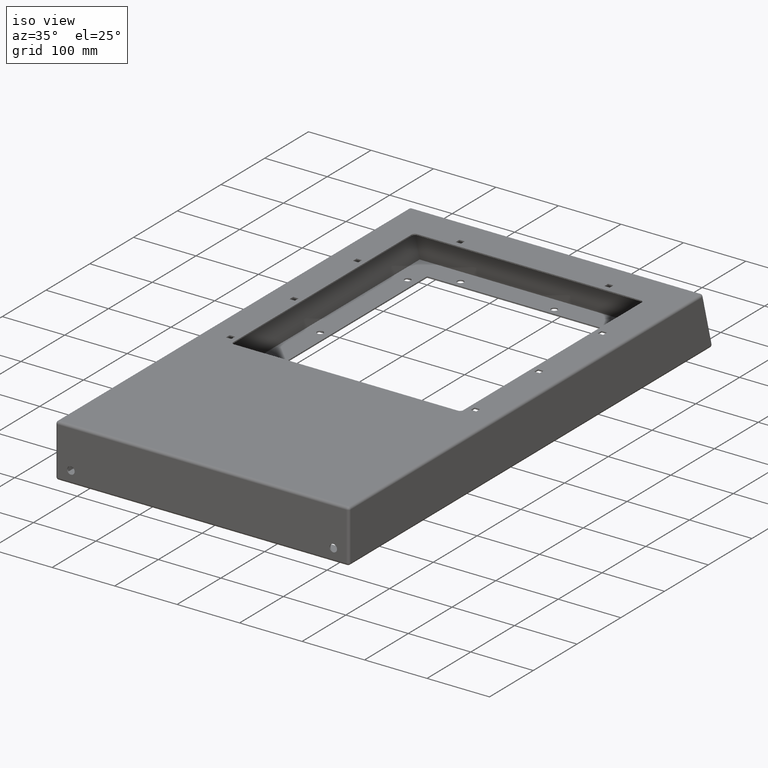
[diagram: clean part render]
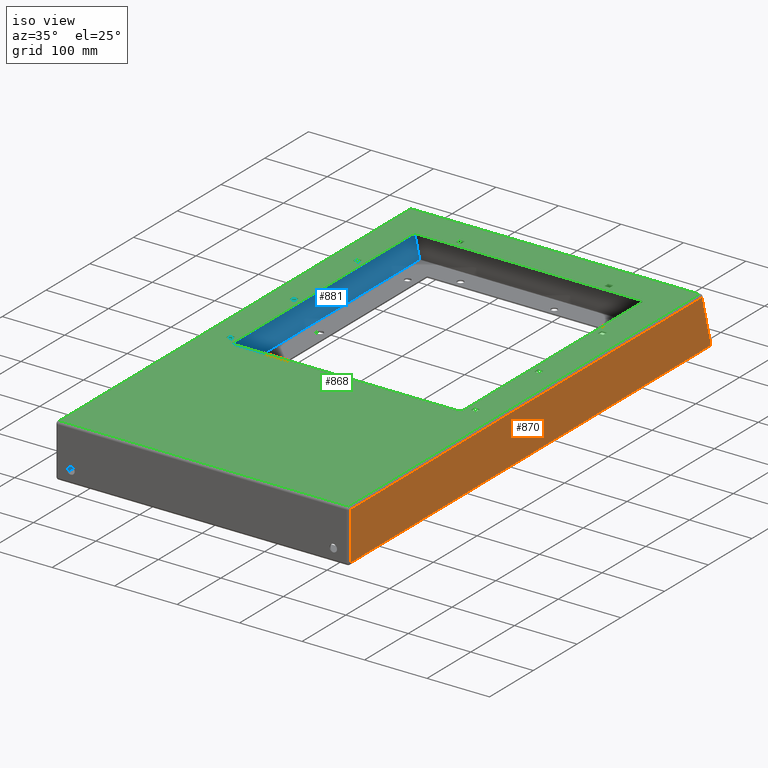
[diagram: same view with three faces highlighted in distinct colors, each labeled with its STEP entity id]
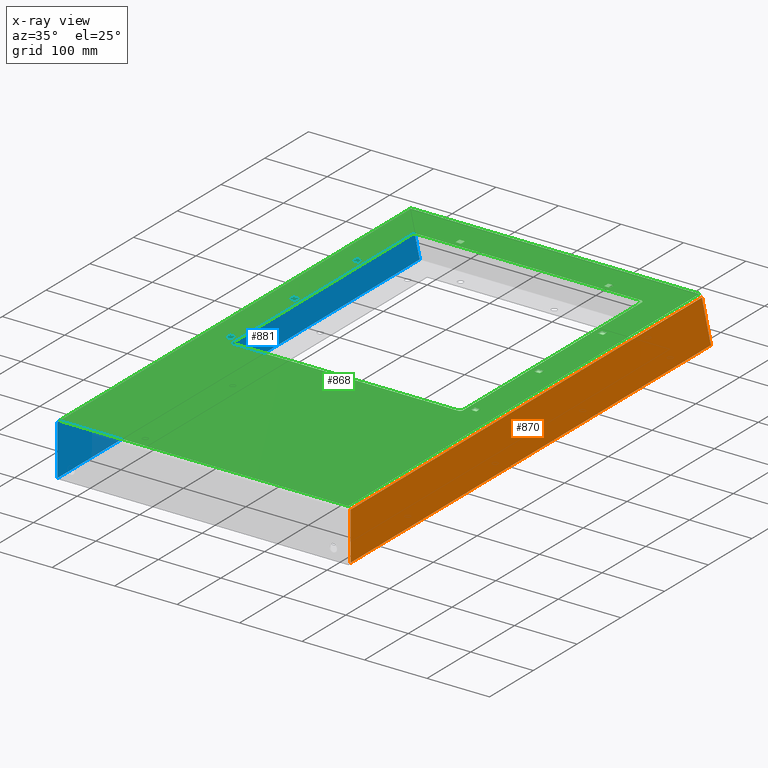
[diagram: x-ray of the same camera — body ghosted, the three highlighted faces saturated]
A machine part, iso view with three faces highlighted in distinct colors.
The next image is the same camera in x-ray (body ghosted, the three faces saturated) — at least one of them is partly hidden behind the body in this view.
Their STEP definitions:

[orange] entity #870 — the highlighted planar face has unit normal (1, 0, -0).
#302 = CARTESIAN_POINT ( 'NONE',  ( 235.0000000000000000, 3.999999999999998200, 4.000000000000000000 ) ) ;
#315 = CARTESIAN_POINT ( 'NONE',  ( 235.0000000000000000, 3.999999999999989800, 81.00000000000000000 ) ) ;
#321 = CARTESIAN_POINT ( 'NONE',  ( 235.0000000000000000, 827.5627798652806200, 3.999999999999988900 ) ) ;
#322 = CARTESIAN_POINT ( 'NONE',  ( 235.0000000000000000, 806.9306920480843200, 81.00000000000008500 ) ) ;
#731 = PLANE ( 'NONE',  #1813 ) ;
#733 = CARTESIAN_POINT ( 'NONE',  ( 235.0000000000000000, 0.0000000000000000000, 0.0000000000000000000 ) ) ;
#739 = DIRECTION ( 'NONE',  ( 1.000000000000000000, 0.0000000000000000000, -0.0000000000000000000 ) ) ;
#740 = DIRECTION ( 'NONE',  ( -0.0000000000000000000, 0.0000000000000000000, -1.000000000000000000 ) ) ;
#799 = EDGE_LOOP ( 'NONE', ( #1352, #1353, #1354, #1355 ) ) ;
#870 = ADVANCED_FACE ( 'NONE', ( #2137 ), #731, .T. ) ;
#1050 = EDGE_CURVE ( 'NONE', #1510, #1497, #2587, .T. ) ;
#1051 = EDGE_CURVE ( 'NONE', #1497, #1516, #2588, .T. ) ;
#1052 = EDGE_CURVE ( 'NONE', #1516, #1517, #2591, .T. ) ;
#1053 = EDGE_CURVE ( 'NONE', #1517, #1510, #2593, .T. ) ;
#1352 = ORIENTED_EDGE ( 'NONE', *, *, #1050, .T. ) ;
#1353 = ORIENTED_EDGE ( 'NONE', *, *, #1051, .T. ) ;
#1354 = ORIENTED_EDGE ( 'NONE', *, *, #1052, .T. ) ;
#1355 = ORIENTED_EDGE ( 'NONE', *, *, #1053, .T. ) ;
#1497 = VERTEX_POINT ( 'NONE', #302 ) ;
#1510 = VERTEX_POINT ( 'NONE', #315 ) ;
#1516 = VERTEX_POINT ( 'NONE', #321 ) ;
#1517 = VERTEX_POINT ( 'NONE', #322 ) ;
#1813 = AXIS2_PLACEMENT_3D ( 'NONE', #733, #739, #740 ) ;
#2137 = FACE_OUTER_BOUND ( 'NONE', #799, .T. ) ;
#2587 = LINE ( 'NONE', #2832, #2590 ) ;
#2588 = LINE ( 'NONE', #2831, #2592 ) ;
#2590 = VECTOR ( 'NONE', #2827, 1000.000000000000000 ) ;
#2591 = LINE ( 'NONE', #2837, #2594 ) ;
#2592 = VECTOR ( 'NONE', #2836, 1000.000000000000000 ) ;
#2593 = LINE ( 'NONE', #2839, #2596 ) ;
#2594 = VECTOR ( 'NONE', #2838, 999.9999999999998900 ) ;
#2596 = VECTOR ( 'NONE', #2840, 1000.000000000000000 ) ;
#2827 = DIRECTION ( 'NONE',  ( -0.0000000000000000000, 1.224646799147353500E-016, -1.000000000000000000 ) ) ;
#2831 = CARTESIAN_POINT ( 'NONE',  ( 235.0000000000000000, 832.7756813566452400, 4.000000000000000000 ) ) ;
#2832 = CARTESIAN_POINT ( 'NONE',  ( 235.0000000000000000, 3.999999999999999100, 4.898587196589412800E-016 ) ) ;
#2836 = DIRECTION ( 'NONE',  ( -0.0000000000000000000, 1.000000000000000000, 0.0000000000000000000 ) ) ;
#2837 = CARTESIAN_POINT ( 'NONE',  ( 235.0000000000000000, 806.1362966948438500, 83.96472381959000600 ) ) ;
#2838 = DIRECTION ( 'NONE',  ( 0.0000000000000000000, -0.2588190451025181900, 0.9659258262890690900 ) ) ;
#2839 = CARTESIAN_POINT ( 'NONE',  ( 235.0000000000000000, -9.998304079928369100E-015, 81.00000000000000000 ) ) ;
#2840 = DIRECTION ( 'NONE',  ( 0.0000000000000000000, -1.000000000000000000, -1.027984282060330300E-016 ) ) ;

[blue] entity #881 — the highlighted planar face has unit normal (1, 0, -0).
#38 = CARTESIAN_POINT ( 'NONE',  ( -232.9999999999999700, 810.0000000000000000, 83.00000000000008500 ) ) ;
#39 = DIRECTION ( 'NONE',  ( 0.0000000000000000000, -1.000000000000000000, -1.027984282060330300E-016 ) ) ;
#50 = CARTESIAN_POINT ( 'NONE',  ( -232.9999999999999700, 1.999999999999999600, 2.449293598294706400E-016 ) ) ;
#51 = DIRECTION ( 'NONE',  ( 0.0000000000000000000, 1.224646799147353500E-016, -1.000000000000000000 ) ) ;
#216 = CARTESIAN_POINT ( 'NONE',  ( -232.9999999999999700, 1.999999999999989600, 83.00000000000000000 ) ) ;
#241 = EDGE_LOOP ( 'NONE', ( #1600, #1601, #1602, #1603 ) ) ;
#881 = ADVANCED_FACE ( 'NONE', ( #2173 ), #2245, .T. ) ;
#902 = VERTEX_POINT ( 'NONE', #2265 ) ;
#908 = VERTEX_POINT ( 'NONE', #2271 ) ;
#910 = VERTEX_POINT ( 'NONE', #2273 ) ;
#1094 = EDGE_CURVE ( 'NONE', #902, #910, #2659, .T. ) ;
#1098 = EDGE_CURVE ( 'NONE', #910, #908, #2667, .T. ) ;
#1137 = EDGE_CURVE ( 'NONE', #908, #1306, #2742, .T. ) ;
#1142 = EDGE_CURVE ( 'NONE', #1306, #902, #2749, .T. ) ;
#1306 = VERTEX_POINT ( 'NONE', #216 ) ;
#1600 = ORIENTED_EDGE ( 'NONE', *, *, #1094, .T. ) ;
#1601 = ORIENTED_EDGE ( 'NONE', *, *, #1098, .T. ) ;
#1602 = ORIENTED_EDGE ( 'NONE', *, *, #1137, .T. ) ;
#1603 = ORIENTED_EDGE ( 'NONE', *, *, #1142, .T. ) ;
#1825 = AXIS2_PLACEMENT_3D ( 'NONE', #2246, #2247, #2248 ) ;
#2173 = FACE_OUTER_BOUND ( 'NONE', #241, .T. ) ;
#2245 = PLANE ( 'NONE',  #1825 ) ;
#2246 = CARTESIAN_POINT ( 'NONE',  ( -232.9999999999999700, 0.0000000000000000000, 0.0000000000000000000 ) ) ;
#2247 = DIRECTION ( 'NONE',  ( 1.000000000000000000, 0.0000000000000000000, -0.0000000000000000000 ) ) ;
#2248 = DIRECTION ( 'NONE',  ( -0.0000000000000000000, 0.0000000000000000000, -1.000000000000000000 ) ) ;
#2265 = CARTESIAN_POINT ( 'NONE',  ( -232.9999999999999700, 1.999999999999999100, 2.000000000000000000 ) ) ;
#2271 = CARTESIAN_POINT ( 'NONE',  ( -232.9999999999999700, 808.4653460240421100, 83.00000000000008500 ) ) ;
#2273 = CARTESIAN_POINT ( 'NONE',  ( -232.9999999999999700, 830.1692306109628100, 2.000000000000000000 ) ) ;
#2659 = LINE ( 'NONE', #2938, #2662 ) ;
#2662 = VECTOR ( 'NONE', #2940, 1000.000000000000000 ) ;
#2667 = LINE ( 'NONE', #2945, #2670 ) ;
#2670 = VECTOR ( 'NONE', #2946, 999.9999999999998900 ) ;
#2742 = LINE ( 'NONE', #38, #2744 ) ;
#2744 = VECTOR ( 'NONE', #39, 1000.000000000000000 ) ;
#2749 = LINE ( 'NONE', #50, #2751 ) ;
#2751 = VECTOR ( 'NONE', #51, 1000.000000000000000 ) ;
#2938 = CARTESIAN_POINT ( 'NONE',  ( -232.9999999999999700, 0.0000000000000000000, 2.000000000000000000 ) ) ;
#2940 = DIRECTION ( 'NONE',  ( -0.0000000000000000000, 1.000000000000000000, 0.0000000000000000000 ) ) ;
#2945 = CARTESIAN_POINT ( 'NONE',  ( -232.9999999999999700, 830.8438297040671600, -0.5176380902050363700 ) ) ;
#2946 = DIRECTION ( 'NONE',  ( 0.0000000000000000000, -0.2588190451025181900, 0.9659258262890690900 ) ) ;

[green] entity #868 — the highlighted planar face has unit normal (0, 0, -1).
#259 = CARTESIAN_POINT ( 'NONE',  ( 200.2500000000000000, 639.2500000000000000, 85.00000000000007100 ) ) ;
#267 = CARTESIAN_POINT ( 'NONE',  ( -230.9999999999999700, 806.9306920480842100, 85.00000000000008500 ) ) ;
#268 = CARTESIAN_POINT ( 'NONE',  ( -230.9999999999999700, 3.999999999999989800, 85.00000000000000000 ) ) ;
#271 = CARTESIAN_POINT ( 'NONE',  ( 200.2500000000000000, 630.7499999999998900, 85.00000000000000000 ) ) ;
#272 = CARTESIAN_POINT ( 'NONE',  ( -191.7500000000000000, 630.7499999999998900, 85.00000000000000000 ) ) ;
#273 = CARTESIAN_POINT ( 'NONE',  ( 230.9999999999999700, 3.999999999999989800, 85.00000000000000000 ) ) ;
#274 = CARTESIAN_POINT ( 'NONE',  ( 230.9999999999999700, 806.9306920480842100, 85.00000000000008500 ) ) ;
#275 = CARTESIAN_POINT ( 'NONE',  ( 200.2500000000000000, 485.7500000000000000, 85.00000000000000000 ) ) ;
#276 = CARTESIAN_POINT ( 'NONE',  ( -200.2500000000000000, 630.7499999999998900, 85.00000000000000000 ) ) ;
#277 = CARTESIAN_POINT ( 'NONE',  ( -114.7500000000001400, 764.2499999999998900, 85.00000000000000000 ) ) ;
#278 = CARTESIAN_POINT ( 'NONE',  ( 191.7500000000000000, 639.2500000000000000, 85.00000000000000000 ) ) ;
#279 = CARTESIAN_POINT ( 'NONE',  ( 191.7499999999999700, 630.7499999999998900, 85.00000000000000000 ) ) ;
#280 = CARTESIAN_POINT ( 'NONE',  ( 200.2500000000000000, 494.2500000000000000, 85.00000000000005700 ) ) ;
#281 = CARTESIAN_POINT ( 'NONE',  ( -200.2500000000000000, 639.2500000000000000, 85.00000000000000000 ) ) ;
#282 = CARTESIAN_POINT ( 'NONE',  ( -123.2500000000001300, 764.2499999999998900, 85.00000000000008500 ) ) ;
#283 = CARTESIAN_POINT ( 'NONE',  ( 191.7500000000000000, 494.2500000000000000, 85.00000000000000000 ) ) ;
#284 = CARTESIAN_POINT ( 'NONE',  ( 191.7499999999999700, 485.7500000000000000, 85.00000000000000000 ) ) ;
#285 = CARTESIAN_POINT ( 'NONE',  ( 114.7500000000001400, 764.2499999999998900, 85.00000000000008500 ) ) ;
#286 = CARTESIAN_POINT ( 'NONE',  ( 123.2500000000001400, 764.2499999999998900, 85.00000000000000000 ) ) ;
#287 = CARTESIAN_POINT ( 'NONE',  ( -123.2500000000001300, 755.7500000000000000, 85.00000000000000000 ) ) ;
#288 = CARTESIAN_POINT ( 'NONE',  ( -114.7500000000001400, 755.7500000000000000, 85.00000000000000000 ) ) ;
#289 = CARTESIAN_POINT ( 'NONE',  ( -191.7499999999999700, 494.2500000000000000, 85.00000000000005700 ) ) ;
#290 = CARTESIAN_POINT ( 'NONE',  ( -191.7500000000000000, 485.7500000000000000, 85.00000000000000000 ) ) ;
#291 = CARTESIAN_POINT ( 'NONE',  ( 114.7500000000001100, 755.7500000000000000, 85.00000000000000000 ) ) ;
#292 = CARTESIAN_POINT ( 'NONE',  ( 123.2500000000001300, 755.7500000000000000, 85.00000000000000000 ) ) ;
#293 = CARTESIAN_POINT ( 'NONE',  ( 200.2500000000000000, 349.2500000000000600, 85.00000000000004300 ) ) ;
#294 = CARTESIAN_POINT ( 'NONE',  ( 200.2500000000000000, 340.7500000000000600, 85.00000000000000000 ) ) ;
#295 = CARTESIAN_POINT ( 'NONE',  ( -200.2500000000000000, 494.2500000000000000, 85.00000000000000000 ) ) ;
#296 = CARTESIAN_POINT ( 'NONE',  ( -200.2500000000000000, 485.7500000000000000, 85.00000000000000000 ) ) ;
#297 = CARTESIAN_POINT ( 'NONE',  ( -191.7499999999999700, 349.2500000000000600, 85.00000000000004300 ) ) ;
#298 = CARTESIAN_POINT ( 'NONE',  ( -191.7500000000000000, 340.7500000000000600, 85.00000000000000000 ) ) ;
#299 = CARTESIAN_POINT ( 'NONE',  ( 191.7500000000000000, 349.2500000000000600, 85.00000000000000000 ) ) ;
#300 = CARTESIAN_POINT ( 'NONE',  ( 191.7499999999999700, 340.7500000000000600, 85.00000000000000000 ) ) ;
#301 = CARTESIAN_POINT ( 'NONE',  ( 178.9999999999999400, 747.0000000000001100, 85.00000000000000000 ) ) ;
#303 = CARTESIAN_POINT ( 'NONE',  ( -200.2500000000000000, 349.2500000000000600, 85.00000000000000000 ) ) ;
#304 = CARTESIAN_POINT ( 'NONE',  ( -200.2500000000000000, 340.7500000000000600, 85.00000000000000000 ) ) ;
#306 = CARTESIAN_POINT ( 'NONE',  ( -179.0000000000000000, 329.0000000000000600, 85.00000000000000000 ) ) ;
#307 = CARTESIAN_POINT ( 'NONE',  ( -179.0000000000000600, 747.0000000000000000, 85.00000000000000000 ) ) ;
#308 = CARTESIAN_POINT ( 'NONE',  ( 184.0000000000000000, 334.0000000000001700, 85.00000000000000000 ) ) ;
#309 = CARTESIAN_POINT ( 'NONE',  ( 183.9999999999999400, 742.0000000000001100, 85.00000000000000000 ) ) ;
#310 = CARTESIAN_POINT ( 'NONE',  ( -184.0000000000000600, 742.0000000000000000, 85.00000000000000000 ) ) ;
#311 = CARTESIAN_POINT ( 'NONE',  ( 179.0000000000000000, 329.0000000000000600, 85.00000000000000000 ) ) ;
#313 = CARTESIAN_POINT ( 'NONE',  ( -184.0000000000000000, 334.0000000000000600, 85.00000000000000000 ) ) ;
#549 = EDGE_LOOP ( 'NONE', ( #1464, #1465, #1466, #1467 ) ) ;
#552 = EDGE_LOOP ( 'NONE', ( #1468, #1469, #917, #919 ) ) ;
#554 = EDGE_LOOP ( 'NONE', ( #928, #927, #929, #796 ) ) ;
#726 = DIRECTION ( 'NONE',  ( 0.0000000000000000000, 1.027984282060330300E-016, -1.000000000000000000 ) ) ;
#729 = PLANE ( 'NONE',  #1811 ) ;
#730 = CARTESIAN_POINT ( 'NONE',  ( 235.0000000000000000, 810.0000000000000000, 85.00000000000008500 ) ) ;
#732 = DIRECTION ( 'NONE',  ( 0.0000000000000000000, 1.000000000000000000, 1.027984282060330300E-016 ) ) ;
#790 = DIRECTION ( 'NONE',  ( -1.000000000000000000, 0.0000000000000000000, 0.0000000000000000000 ) ) ;
#791 = CARTESIAN_POINT ( 'NONE',  ( 123.2500000000001400, 764.2499999999998900, 85.00000000000000000 ) ) ;
#796 = ORIENTED_EDGE ( 'NONE', *, *, #1023, .F. ) ;
#797 = ORIENTED_EDGE ( 'NONE', *, *, #1026, .F. ) ;
#800 = EDGE_LOOP ( 'NONE', ( #814, #845, #844, #847 ) ) ;
#801 = ORIENTED_EDGE ( 'NONE', *, *, #1027, .F. ) ;
#805 = ORIENTED_EDGE ( 'NONE', *, *, #1033, .F. ) ;
#807 = EDGE_LOOP ( 'NONE', ( #1336, #1337, #1338, #1339, #1340, #1341, #1342, #1343 ) ) ;
#812 = ORIENTED_EDGE ( 'NONE', *, *, #1024, .F. ) ;
#814 = ORIENTED_EDGE ( 'NONE', *, *, #1028, .F. ) ;
#820 = ORIENTED_EDGE ( 'NONE', *, *, #1025, .F. ) ;
#827 = EDGE_LOOP ( 'NONE', ( #812, #820, #797, #801 ) ) ;
#832 = EDGE_LOOP ( 'NONE', ( #918, #920, #922, #921 ) ) ;
#834 = EDGE_LOOP ( 'NONE', ( #923, #925, #924, #926 ) ) ;
#836 = EDGE_LOOP ( 'NONE', ( #848, #805, #846, #849 ) ) ;
#838 = EDGE_LOOP ( 'NONE', ( #1460, #1461, #1462, #1463 ) ) ;
#844 = ORIENTED_EDGE ( 'NONE', *, *, #1030, .F. ) ;
#845 = ORIENTED_EDGE ( 'NONE', *, *, #1029, .F. ) ;
#846 = ORIENTED_EDGE ( 'NONE', *, *, #1034, .F. ) ;
#847 = ORIENTED_EDGE ( 'NONE', *, *, #1031, .F. ) ;
#848 = ORIENTED_EDGE ( 'NONE', *, *, #1032, .F. ) ;
#849 = ORIENTED_EDGE ( 'NONE', *, *, #1035, .F. ) ;
#868 = ADVANCED_FACE ( 'NONE', ( #2126, #2128, #2125, #2127, #2124, #2129, #2130, #2131, #2132, #2133 ), #729, .F. ) ;
#917 = ORIENTED_EDGE ( 'NONE', *, *, #1010, .F. ) ;
#918 = ORIENTED_EDGE ( 'NONE', *, *, #1012, .F. ) ;
#919 = ORIENTED_EDGE ( 'NONE', *, *, #1011, .F. ) ;
#920 = ORIENTED_EDGE ( 'NONE', *, *, #1013, .F. ) ;
#921 = ORIENTED_EDGE ( 'NONE', *, *, #1015, .F. ) ;
#922 = ORIENTED_EDGE ( 'NONE', *, *, #1014, .F. ) ;
#923 = ORIENTED_EDGE ( 'NONE', *, *, #1016, .F. ) ;
#924 = ORIENTED_EDGE ( 'NONE', *, *, #1018, .F. ) ;
#925 = ORIENTED_EDGE ( 'NONE', *, *, #1017, .F. ) ;
#926 = ORIENTED_EDGE ( 'NONE', *, *, #1019, .F. ) ;
#927 = ORIENTED_EDGE ( 'NONE', *, *, #1021, .F. ) ;
#928 = ORIENTED_EDGE ( 'NONE', *, *, #1020, .F. ) ;
#929 = ORIENTED_EDGE ( 'NONE', *, *, #1022, .F. ) ;
#938 = VERTEX_POINT ( 'NONE', #2288 ) ;
#1000 = EDGE_CURVE ( 'NONE', #1434, #1435, #2493, .T. ) ;
#1001 = EDGE_CURVE ( 'NONE', #1435, #1440, #2487, .T. ) ;
#1002 = EDGE_CURVE ( 'NONE', #1440, #1441, #2497, .T. ) ;
#1003 = EDGE_CURVE ( 'NONE', #1441, #1434, #2499, .T. ) ;
#1004 = EDGE_CURVE ( 'NONE', #1426, #1470, #2501, .T. ) ;
#1005 = EDGE_CURVE ( 'NONE', #1438, #1426, #2495, .T. ) ;
#1006 = EDGE_CURVE ( 'NONE', #1471, #1438, #2503, .T. ) ;
#1007 = EDGE_CURVE ( 'NONE', #1470, #1471, #2505, .T. ) ;
#1008 = EDGE_CURVE ( 'NONE', #938, #1474, #2507, .T. ) ;
#1009 = EDGE_CURVE ( 'NONE', #1439, #938, #2509, .T. ) ;
#1010 = EDGE_CURVE ( 'NONE', #1475, #1439, #2511, .T. ) ;
#1011 = EDGE_CURVE ( 'NONE', #1474, #1475, #2513, .T. ) ;
#1012 = EDGE_CURVE ( 'NONE', #1472, #1478, #2515, .T. ) ;
#1013 = EDGE_CURVE ( 'NONE', #1473, #1472, #2517, .T. ) ;
#1014 = EDGE_CURVE ( 'NONE', #1479, #1473, #2519, .T. ) ;
#1015 = EDGE_CURVE ( 'NONE', #1478, #1479, #2521, .T. ) ;
#1016 = EDGE_CURVE ( 'NONE', #1476, #1482, #2523, .T. ) ;
#1017 = EDGE_CURVE ( 'NONE', #1477, #1476, #2525, .T. ) ;
#1018 = EDGE_CURVE ( 'NONE', #1483, #1477, #2527, .T. ) ;
#1019 = EDGE_CURVE ( 'NONE', #1482, #1483, #2529, .T. ) ;
#1020 = EDGE_CURVE ( 'NONE', #1480, #1486, #2531, .T. ) ;
#1021 = EDGE_CURVE ( 'NONE', #1481, #1480, #2533, .T. ) ;
#1022 = EDGE_CURVE ( 'NONE', #1487, #1481, #2535, .T. ) ;
#1023 = EDGE_CURVE ( 'NONE', #1486, #1487, #2537, .T. ) ;
#1024 = EDGE_CURVE ( 'NONE', #1484, #1490, #2539, .T. ) ;
#1025 = EDGE_CURVE ( 'NONE', #1485, #1484, #2541, .T. ) ;
#1026 = EDGE_CURVE ( 'NONE', #1491, #1485, #2543, .T. ) ;
#1027 = EDGE_CURVE ( 'NONE', #1490, #1491, #2545, .T. ) ;
#1028 = EDGE_CURVE ( 'NONE', #1488, #1494, #2547, .T. ) ;
#1029 = EDGE_CURVE ( 'NONE', #1489, #1488, #2549, .T. ) ;
#1030 = EDGE_CURVE ( 'NONE', #1495, #1489, #2551, .T. ) ;
#1031 = EDGE_CURVE ( 'NONE', #1494, #1495, #2553, .T. ) ;
#1032 = EDGE_CURVE ( 'NONE', #1492, #1498, #2555, .T. ) ;
#1033 = EDGE_CURVE ( 'NONE', #1493, #1492, #2557, .T. ) ;
#1034 = EDGE_CURVE ( 'NONE', #1499, #1493, #2559, .T. ) ;
#1035 = EDGE_CURVE ( 'NONE', #1498, #1499, #2561, .T. ) ;
#1036 = EDGE_CURVE ( 'NONE', #1496, #1502, #2563, .T. ) ;
#1037 = EDGE_CURVE ( 'NONE', #1496, #1504, #2565, .T. ) ;
#1038 = EDGE_CURVE ( 'NONE', #1503, #1504, #2567, .T. ) ;
#1039 = EDGE_CURVE ( 'NONE', #1503, #1506, #2569, .T. ) ;
#1040 = EDGE_CURVE ( 'NONE', #1501, #1506, #2572, .T. ) ;
#1041 = EDGE_CURVE ( 'NONE', #1501, #1508, #2570, .T. ) ;
#1042 = EDGE_CURVE ( 'NONE', #1505, #1508, #2575, .T. ) ;
#1043 = EDGE_CURVE ( 'NONE', #1505, #1502, #2573, .T. ) ;
#1336 = ORIENTED_EDGE ( 'NONE', *, *, #1036, .F. ) ;
#1337 = ORIENTED_EDGE ( 'NONE', *, *, #1037, .T. ) ;
#1338 = ORIENTED_EDGE ( 'NONE', *, *, #1038, .F. ) ;
#1339 = ORIENTED_EDGE ( 'NONE', *, *, #1039, .T. ) ;
#1340 = ORIENTED_EDGE ( 'NONE', *, *, #1040, .F. ) ;
#1341 = ORIENTED_EDGE ( 'NONE', *, *, #1041, .T. ) ;
#1342 = ORIENTED_EDGE ( 'NONE', *, *, #1042, .F. ) ;
#1343 = ORIENTED_EDGE ( 'NONE', *, *, #1043, .T. ) ;
#1426 = VERTEX_POINT ( 'NONE', #259 ) ;
#1434 = VERTEX_POINT ( 'NONE', #267 ) ;
#1435 = VERTEX_POINT ( 'NONE', #268 ) ;
#1438 = VERTEX_POINT ( 'NONE', #271 ) ;
#1439 = VERTEX_POINT ( 'NONE', #272 ) ;
#1440 = VERTEX_POINT ( 'NONE', #273 ) ;
#1441 = VERTEX_POINT ( 'NONE', #274 ) ;
#1460 = ORIENTED_EDGE ( 'NONE', *, *, #1000, .T. ) ;
#1461 = ORIENTED_EDGE ( 'NONE', *, *, #1001, .T. ) ;
#1462 = ORIENTED_EDGE ( 'NONE', *, *, #1002, .T. ) ;
#1463 = ORIENTED_EDGE ( 'NONE', *, *, #1003, .T. ) ;
#1464 = ORIENTED_EDGE ( 'NONE', *, *, #1004, .F. ) ;
#1465 = ORIENTED_EDGE ( 'NONE', *, *, #1005, .F. ) ;
#1466 = ORIENTED_EDGE ( 'NONE', *, *, #1006, .F. ) ;
#1467 = ORIENTED_EDGE ( 'NONE', *, *, #1007, .F. ) ;
#1468 = ORIENTED_EDGE ( 'NONE', *, *, #1008, .F. ) ;
#1469 = ORIENTED_EDGE ( 'NONE', *, *, #1009, .F. ) ;
#1470 = VERTEX_POINT ( 'NONE', #278 ) ;
#1471 = VERTEX_POINT ( 'NONE', #279 ) ;
#1472 = VERTEX_POINT ( 'NONE', #280 ) ;
#1473 = VERTEX_POINT ( 'NONE', #275 ) ;
#1474 = VERTEX_POINT ( 'NONE', #281 ) ;
#1475 = VERTEX_POINT ( 'NONE', #276 ) ;
#1476 = VERTEX_POINT ( 'NONE', #282 ) ;
#1477 = VERTEX_POINT ( 'NONE', #277 ) ;
#1478 = VERTEX_POINT ( 'NONE', #283 ) ;
#1479 = VERTEX_POINT ( 'NONE', #284 ) ;
#1480 = VERTEX_POINT ( 'NONE', #285 ) ;
#1481 = VERTEX_POINT ( 'NONE', #286 ) ;
#1482 = VERTEX_POINT ( 'NONE', #287 ) ;
#1483 = VERTEX_POINT ( 'NONE', #288 ) ;
#1484 = VERTEX_POINT ( 'NONE', #289 ) ;
#1485 = VERTEX_POINT ( 'NONE', #290 ) ;
#1486 = VERTEX_POINT ( 'NONE', #291 ) ;
#1487 = VERTEX_POINT ( 'NONE', #292 ) ;
#1488 = VERTEX_POINT ( 'NONE', #293 ) ;
#1489 = VERTEX_POINT ( 'NONE', #294 ) ;
#1490 = VERTEX_POINT ( 'NONE', #295 ) ;
#1491 = VERTEX_POINT ( 'NONE', #296 ) ;
#1492 = VERTEX_POINT ( 'NONE', #297 ) ;
#1493 = VERTEX_POINT ( 'NONE', #298 ) ;
#1494 = VERTEX_POINT ( 'NONE', #299 ) ;
#1495 = VERTEX_POINT ( 'NONE', #300 ) ;
#1496 = VERTEX_POINT ( 'NONE', #301 ) ;
#1498 = VERTEX_POINT ( 'NONE', #303 ) ;
#1499 = VERTEX_POINT ( 'NONE', #304 ) ;
#1501 = VERTEX_POINT ( 'NONE', #306 ) ;
#1502 = VERTEX_POINT ( 'NONE', #307 ) ;
#1503 = VERTEX_POINT ( 'NONE', #308 ) ;
#1504 = VERTEX_POINT ( 'NONE', #309 ) ;
#1505 = VERTEX_POINT ( 'NONE', #310 ) ;
#1506 = VERTEX_POINT ( 'NONE', #311 ) ;
#1508 = VERTEX_POINT ( 'NONE', #313 ) ;
#1811 = AXIS2_PLACEMENT_3D ( 'NONE', #730, #726, #732 ) ;
#1854 = AXIS2_PLACEMENT_3D ( 'NONE', #2803, #2804, #2805 ) ;
#1855 = AXIS2_PLACEMENT_3D ( 'NONE', #2808, #2809, #2810 ) ;
#1856 = AXIS2_PLACEMENT_3D ( 'NONE', #2813, #2814, #2815 ) ;
#1857 = AXIS2_PLACEMENT_3D ( 'NONE', #2818, #2819, #2820 ) ;
#2124 = FACE_BOUND ( 'NONE', #834, .T. ) ;
#2125 = FACE_BOUND ( 'NONE', #552, .T. ) ;
#2126 = FACE_OUTER_BOUND ( 'NONE', #838, .T. ) ;
#2127 = FACE_BOUND ( 'NONE', #832, .T. ) ;
#2128 = FACE_BOUND ( 'NONE', #549, .T. ) ;
#2129 = FACE_BOUND ( 'NONE', #554, .T. ) ;
#2130 = FACE_BOUND ( 'NONE', #827, .T. ) ;
#2131 = FACE_BOUND ( 'NONE', #800, .T. ) ;
#2132 = FACE_BOUND ( 'NONE', #836, .T. ) ;
#2133 = FACE_BOUND ( 'NONE', #807, .T. ) ;
#2288 = CARTESIAN_POINT ( 'NONE',  ( -191.7499999999999700, 639.2500000000000000, 85.00000000000007100 ) ) ;
#2431 = CARTESIAN_POINT ( 'NONE',  ( 235.0000000000000000, 4.000000000000003600, 85.00000000000000000 ) ) ;
#2433 = CARTESIAN_POINT ( 'NONE',  ( 200.2500000000000000, 630.7499999999998900, 85.00000000000000000 ) ) ;
#2439 = CARTESIAN_POINT ( 'NONE',  ( -230.9999999999999700, 810.0000000000000000, 85.00000000000008500 ) ) ;
#2440 = CARTESIAN_POINT ( 'NONE',  ( 200.2500000000000000, 630.7499999999998900, 85.00000000000000000 ) ) ;
#2441 = DIRECTION ( 'NONE',  ( 0.0000000000000000000, -1.000000000000000000, -1.027984282060330300E-016 ) ) ;
#2442 = DIRECTION ( 'NONE',  ( 1.000000000000000000, -0.0000000000000000000, -0.0000000000000000000 ) ) ;
#2443 = CARTESIAN_POINT ( 'NONE',  ( 230.9999999999999700, 810.0000000000000000, 85.00000000000008500 ) ) ;
#2444 = DIRECTION ( 'NONE',  ( -0.0000000000000000000, 1.000000000000000000, 1.027984282060330300E-016 ) ) ;
#2445 = CARTESIAN_POINT ( 'NONE',  ( 235.0000000000000000, 806.9306920480842100, 85.00000000000008500 ) ) ;
#2446 = DIRECTION ( 'NONE',  ( -1.000000000000000000, 0.0000000000000000000, 0.0000000000000000000 ) ) ;
#2447 = CARTESIAN_POINT ( 'NONE',  ( 200.2500000000000000, 639.2500000000000000, 85.00000000000000000 ) ) ;
#2448 = CARTESIAN_POINT ( 'NONE',  ( 191.7499999999999700, 630.7499999999998900, 85.00000000000000000 ) ) ;
#2449 = DIRECTION ( 'NONE',  ( -1.000000000000000000, 0.0000000000000000000, 0.0000000000000000000 ) ) ;
#2450 = DIRECTION ( 'NONE',  ( 0.0000000000000000000, 1.000000000000000000, 0.0000000000000000000 ) ) ;
#2451 = CARTESIAN_POINT ( 'NONE',  ( -200.2500000000000000, 639.2500000000000000, 85.00000000000000000 ) ) ;
#2452 = DIRECTION ( 'NONE',  ( 1.000000000000000000, -0.0000000000000000000, -0.0000000000000000000 ) ) ;
#2453 = CARTESIAN_POINT ( 'NONE',  ( -191.7500000000000000, 630.7499999999998900, 85.00000000000000000 ) ) ;
#2454 = DIRECTION ( 'NONE',  ( -3.265361837132789100E-015, -1.000000000000000000, -0.0000000000000000000 ) ) ;
#2455 = CARTESIAN_POINT ( 'NONE',  ( -200.2500000000000000, 630.7499999999998900, 85.00000000000000000 ) ) ;
#2456 = DIRECTION ( 'NONE',  ( -1.000000000000000000, -0.0000000000000000000, -0.0000000000000000000 ) ) ;
#2457 = CARTESIAN_POINT ( 'NONE',  ( -200.2500000000000000, 630.7499999999998900, 85.00000000000000000 ) ) ;
#2458 = DIRECTION ( 'NONE',  ( 0.0000000000000000000, 1.000000000000000000, 0.0000000000000000000 ) ) ;
#2459 = CARTESIAN_POINT ( 'NONE',  ( 200.2500000000000000, 494.2500000000000000, 85.00000000000000000 ) ) ;
#2460 = DIRECTION ( 'NONE',  ( 1.000000000000000000, 0.0000000000000000000, 0.0000000000000000000 ) ) ;
#2461 = CARTESIAN_POINT ( 'NONE',  ( 200.2500000000000000, 485.7500000000000000, 85.00000000000000000 ) ) ;
#2462 = DIRECTION ( 'NONE',  ( -0.0000000000000000000, -1.000000000000000000, -0.0000000000000000000 ) ) ;
#2463 = CARTESIAN_POINT ( 'NONE',  ( 200.2500000000000000, 485.7500000000000000, 85.00000000000000000 ) ) ;
#2464 = DIRECTION ( 'NONE',  ( -1.000000000000000000, 0.0000000000000000000, 0.0000000000000000000 ) ) ;
#2465 = CARTESIAN_POINT ( 'NONE',  ( 191.7499999999999700, 485.7500000000000000, 85.00000000000000000 ) ) ;
#2466 = DIRECTION ( 'NONE',  ( 0.0000000000000000000, 1.000000000000000000, 0.0000000000000000000 ) ) ;
#2467 = CARTESIAN_POINT ( 'NONE',  ( -123.2500000000001400, 764.2499999999998900, 85.00000000000000000 ) ) ;
#2468 = DIRECTION ( 'NONE',  ( 1.000000000000000000, -0.0000000000000000000, -0.0000000000000000000 ) ) ;
#2469 = CARTESIAN_POINT ( 'NONE',  ( -123.2500000000001400, 764.2499999999998900, 85.00000000000000000 ) ) ;
#2470 = DIRECTION ( 'NONE',  ( -3.265361837132810400E-015, -1.000000000000000000, -0.0000000000000000000 ) ) ;
#2471 = CARTESIAN_POINT ( 'NONE',  ( -114.7500000000001400, 764.2499999999998900, 85.00000000000000000 ) ) ;
#2472 = DIRECTION ( 'NONE',  ( 1.632680918566437200E-015, -1.000000000000000000, 0.0000000000000000000 ) ) ;
#2473 = CARTESIAN_POINT ( 'NONE',  ( -123.2500000000001300, 755.7500000000000000, 85.00000000000000000 ) ) ;
#2474 = DIRECTION ( 'NONE',  ( -1.000000000000000000, -0.0000000000000000000, -0.0000000000000000000 ) ) ;
#2475 = CARTESIAN_POINT ( 'NONE',  ( 114.7500000000001400, 764.2499999999998900, 85.00000000000000000 ) ) ;
#2476 = DIRECTION ( 'NONE',  ( -0.0000000000000000000, 1.000000000000000000, -0.0000000000000000000 ) ) ;
#2487 = LINE ( 'NONE', #2431, #2498 ) ;
#2493 = LINE ( 'NONE', #2439, #2496 ) ;
#2495 = LINE ( 'NONE', #2433, #2506 ) ;
#2496 = VECTOR ( 'NONE', #2441, 1000.000000000000000 ) ;
#2497 = LINE ( 'NONE', #2443, #2500 ) ;
#2498 = VECTOR ( 'NONE', #2442, 1000.000000000000000 ) ;
#2499 = LINE ( 'NONE', #2445, #2502 ) ;
#2500 = VECTOR ( 'NONE', #2444, 1000.000000000000000 ) ;
#2501 = LINE ( 'NONE', #2447, #2504 ) ;
#2502 = VECTOR ( 'NONE', #2446, 1000.000000000000000 ) ;
#2503 = LINE ( 'NONE', #2440, #2508 ) ;
#2504 = VECTOR ( 'NONE', #2449, 1000.000000000000000 ) ;
#2505 = LINE ( 'NONE', #2448, #2510 ) ;
#2506 = VECTOR ( 'NONE', #2450, 1000.000000000000000 ) ;
#2507 = LINE ( 'NONE', #2451, #2512 ) ;
#2508 = VECTOR ( 'NONE', #2452, 1000.000000000000000 ) ;
#2509 = LINE ( 'NONE', #2453, #2514 ) ;
#2510 = VECTOR ( 'NONE', #2454, 1000.000000000000000 ) ;
#2511 = LINE ( 'NONE', #2455, #2516 ) ;
#2512 = VECTOR ( 'NONE', #2456, 1000.000000000000000 ) ;
#2513 = LINE ( 'NONE', #2457, #2518 ) ;
#2514 = VECTOR ( 'NONE', #2458, 1000.000000000000000 ) ;
#2515 = LINE ( 'NONE', #2459, #2520 ) ;
#2516 = VECTOR ( 'NONE', #2460, 1000.000000000000000 ) ;
#2517 = LINE ( 'NONE', #2461, #2522 ) ;
#2518 = VECTOR ( 'NONE', #2462, 1000.000000000000000 ) ;
#2519 = LINE ( 'NONE', #2463, #2524 ) ;
#2520 = VECTOR ( 'NONE', #2464, 1000.000000000000000 ) ;
#2521 = LINE ( 'NONE', #2465, #2526 ) ;
#2522 = VECTOR ( 'NONE', #2466, 1000.000000000000000 ) ;
#2523 = LINE ( 'NONE', #2467, #2528 ) ;
#2524 = VECTOR ( 'NONE', #2468, 1000.000000000000000 ) ;
#2525 = LINE ( 'NONE', #2469, #2530 ) ;
#2526 = VECTOR ( 'NONE', #2470, 1000.000000000000000 ) ;
#2527 = LINE ( 'NONE', #2471, #2532 ) ;
#2528 = VECTOR ( 'NONE', #2472, 1000.000000000000000 ) ;
#2529 = LINE ( 'NONE', #2473, #2534 ) ;
#2530 = VECTOR ( 'NONE', #2474, 1000.000000000000000 ) ;
#2531 = LINE ( 'NONE', #2475, #2536 ) ;
#2532 = VECTOR ( 'NONE', #2476, 1000.000000000000000 ) ;
#2533 = LINE ( 'NONE', #791, #2538 ) ;
#2534 = VECTOR ( 'NONE', #2769, 1000.000000000000000 ) ;
#2535 = LINE ( 'NONE', #2768, #2540 ) ;
#2536 = VECTOR ( 'NONE', #2770, 1000.000000000000000 ) ;
#2537 = LINE ( 'NONE', #2771, #2542 ) ;
#2538 = VECTOR ( 'NONE', #790, 1000.000000000000000 ) ;
#2539 = LINE ( 'NONE', #2773, #2544 ) ;
#2540 = VECTOR ( 'NONE', #2772, 1000.000000000000000 ) ;
#2541 = LINE ( 'NONE', #2774, #2546 ) ;
#2542 = VECTOR ( 'NONE', #2775, 1000.000000000000000 ) ;
#2543 = LINE ( 'NONE', #2776, #2548 ) ;
#2544 = VECTOR ( 'NONE', #2777, 1000.000000000000000 ) ;
#2545 = LINE ( 'NONE', #2778, #2550 ) ;
#2546 = VECTOR ( 'NONE', #2779, 1000.000000000000000 ) ;
#2547 = LINE ( 'NONE', #2780, #2552 ) ;
#2548 = VECTOR ( 'NONE', #2781, 1000.000000000000000 ) ;
#2549 = LINE ( 'NONE', #2782, #2554 ) ;
#2550 = VECTOR ( 'NONE', #2783, 1000.000000000000000 ) ;
#2551 = LINE ( 'NONE', #2784, #2556 ) ;
#2552 = VECTOR ( 'NONE', #2785, 1000.000000000000000 ) ;
#2553 = LINE ( 'NONE', #2786, #2558 ) ;
#2554 = VECTOR ( 'NONE', #2787, 1000.000000000000000 ) ;
#2555 = LINE ( 'NONE', #2788, #2560 ) ;
#2556 = VECTOR ( 'NONE', #2789, 1000.000000000000000 ) ;
#2557 = LINE ( 'NONE', #2790, #2562 ) ;
#2558 = VECTOR ( 'NONE', #2791, 1000.000000000000000 ) ;
#2559 = LINE ( 'NONE', #2792, #2564 ) ;
#2560 = VECTOR ( 'NONE', #2793, 1000.000000000000000 ) ;
#2561 = LINE ( 'NONE', #2794, #2566 ) ;
#2562 = VECTOR ( 'NONE', #2795, 1000.000000000000000 ) ;
#2563 = LINE ( 'NONE', #2796, #2568 ) ;
#2564 = VECTOR ( 'NONE', #2797, 1000.000000000000000 ) ;
#2565 = CIRCLE ( 'NONE', #1854, 5.000000000000004400 ) ;
#2566 = VECTOR ( 'NONE', #2798, 1000.000000000000000 ) ;
#2567 = LINE ( 'NONE', #2802, #2571 ) ;
#2568 = VECTOR ( 'NONE', #2799, 1000.000000000000000 ) ;
#2569 = CIRCLE ( 'NONE', #1855, 5.000000000000004400 ) ;
#2570 = CIRCLE ( 'NONE', #1856, 5.000000000000004400 ) ;
#2571 = VECTOR ( 'NONE', #2800, 1000.000000000000000 ) ;
#2572 = LINE ( 'NONE', #2806, #2574 ) ;
#2573 = CIRCLE ( 'NONE', #1857, 5.000000000000004400 ) ;
#2574 = VECTOR ( 'NONE', #2801, 1000.000000000000000 ) ;
#2575 = LINE ( 'NONE', #2811, #2577 ) ;
#2577 = VECTOR ( 'NONE', #2807, 1000.000000000000000 ) ;
#2768 = CARTESIAN_POINT ( 'NONE',  ( 123.2500000000001400, 764.2499999999998900, 85.00000000000000000 ) ) ;
#2769 = DIRECTION ( 'NONE',  ( 1.000000000000000000, 0.0000000000000000000, 0.0000000000000000000 ) ) ;
#2770 = DIRECTION ( 'NONE',  ( -3.265361837132874300E-015, -1.000000000000000000, 0.0000000000000000000 ) ) ;
#2771 = CARTESIAN_POINT ( 'NONE',  ( 123.2500000000001300, 755.7500000000000000, 85.00000000000000000 ) ) ;
#2772 = DIRECTION ( 'NONE',  ( 1.632680918566437200E-015, 1.000000000000000000, -0.0000000000000000000 ) ) ;
#2773 = CARTESIAN_POINT ( 'NONE',  ( -200.2500000000000000, 494.2500000000000000, 85.00000000000000000 ) ) ;
#2774 = CARTESIAN_POINT ( 'NONE',  ( -191.7500000000000000, 485.7500000000000000, 85.00000000000000000 ) ) ;
#2775 = DIRECTION ( 'NONE',  ( 1.000000000000000000, -0.0000000000000000000, -0.0000000000000000000 ) ) ;
#2776 = CARTESIAN_POINT ( 'NONE',  ( -200.2500000000000000, 485.7500000000000000, 85.00000000000000000 ) ) ;
#2777 = DIRECTION ( 'NONE',  ( -1.000000000000000000, -0.0000000000000000000, -0.0000000000000000000 ) ) ;
#2778 = CARTESIAN_POINT ( 'NONE',  ( -200.2500000000000000, 485.7500000000000000, 85.00000000000000000 ) ) ;
#2779 = DIRECTION ( 'NONE',  ( 0.0000000000000000000, 1.000000000000000000, 0.0000000000000000000 ) ) ;
#2780 = CARTESIAN_POINT ( 'NONE',  ( 200.2500000000000000, 349.2500000000000600, 85.00000000000000000 ) ) ;
#2781 = DIRECTION ( 'NONE',  ( 1.000000000000000000, 0.0000000000000000000, 0.0000000000000000000 ) ) ;
#2782 = CARTESIAN_POINT ( 'NONE',  ( 200.2500000000000000, 340.7500000000000600, 85.00000000000000000 ) ) ;
#2783 = DIRECTION ( 'NONE',  ( -0.0000000000000000000, -1.000000000000000000, -0.0000000000000000000 ) ) ;
#2784 = CARTESIAN_POINT ( 'NONE',  ( 200.2500000000000000, 340.7500000000000600, 85.00000000000000000 ) ) ;
#2785 = DIRECTION ( 'NONE',  ( -1.000000000000000000, 0.0000000000000000000, 0.0000000000000000000 ) ) ;
#2786 = CARTESIAN_POINT ( 'NONE',  ( 191.7499999999999700, 340.7500000000000600, 85.00000000000000000 ) ) ;
#2787 = DIRECTION ( 'NONE',  ( 0.0000000000000000000, 1.000000000000000000, 0.0000000000000000000 ) ) ;
#2788 = CARTESIAN_POINT ( 'NONE',  ( -200.2500000000000000, 349.2500000000000600, 85.00000000000000000 ) ) ;
#2789 = DIRECTION ( 'NONE',  ( 1.000000000000000000, -0.0000000000000000000, -0.0000000000000000000 ) ) ;
#2790 = CARTESIAN_POINT ( 'NONE',  ( -191.7500000000000000, 340.7500000000000600, 85.00000000000000000 ) ) ;
#2791 = DIRECTION ( 'NONE',  ( -3.265361837132810400E-015, -1.000000000000000000, -0.0000000000000000000 ) ) ;
#2792 = CARTESIAN_POINT ( 'NONE',  ( -200.2500000000000000, 340.7500000000000600, 85.00000000000000000 ) ) ;
#2793 = DIRECTION ( 'NONE',  ( -1.000000000000000000, -0.0000000000000000000, -0.0000000000000000000 ) ) ;
#2794 = CARTESIAN_POINT ( 'NONE',  ( -200.2500000000000000, 340.7500000000000600, 85.00000000000000000 ) ) ;
#2795 = DIRECTION ( 'NONE',  ( 0.0000000000000000000, 1.000000000000000000, 0.0000000000000000000 ) ) ;
#2796 = CARTESIAN_POINT ( 'NONE',  ( -184.0000000000000600, 747.0000000000000000, 85.00000000000000000 ) ) ;
#2797 = DIRECTION ( 'NONE',  ( 1.000000000000000000, 0.0000000000000000000, 0.0000000000000000000 ) ) ;
#2798 = DIRECTION ( 'NONE',  ( -0.0000000000000000000, -1.000000000000000000, -0.0000000000000000000 ) ) ;
#2799 = DIRECTION ( 'NONE',  ( -1.000000000000000000, -3.016910393003142900E-016, -0.0000000000000000000 ) ) ;
#2800 = DIRECTION ( 'NONE',  ( -1.328017972039661000E-016, 1.000000000000000000, -0.0000000000000000000 ) ) ;
#2801 = DIRECTION ( 'NONE',  ( 1.000000000000000000, 0.0000000000000000000, 0.0000000000000000000 ) ) ;
#2802 = CARTESIAN_POINT ( 'NONE',  ( 183.9999999999999400, 747.0000000000001100, 85.00000000000000000 ) ) ;
#2803 = CARTESIAN_POINT ( 'NONE',  ( 178.9999999999999400, 742.0000000000001100, 85.00000000000007100 ) ) ;
#2804 = DIRECTION ( 'NONE',  ( 0.0000000000000000000, 1.027984282060330300E-016, -1.000000000000000000 ) ) ;
#2805 = DIRECTION ( 'NONE',  ( 0.0000000000000000000, 1.000000000000000000, 0.0000000000000000000 ) ) ;
#2806 = CARTESIAN_POINT ( 'NONE',  ( -184.0000000000000000, 329.0000000000000600, 85.00000000000000000 ) ) ;
#2807 = DIRECTION ( 'NONE',  ( 1.328017972039661200E-016, -1.000000000000000000, 0.0000000000000000000 ) ) ;
#2808 = CARTESIAN_POINT ( 'NONE',  ( 179.0000000000000000, 334.0000000000000600, 85.00000000000004300 ) ) ;
#2809 = DIRECTION ( 'NONE',  ( 0.0000000000000000000, 1.027984282060330300E-016, -1.000000000000000000 ) ) ;
#2810 = DIRECTION ( 'NONE',  ( 0.0000000000000000000, 1.000000000000000000, 0.0000000000000000000 ) ) ;
#2811 = CARTESIAN_POINT ( 'NONE',  ( -184.0000000000000600, 747.0000000000000000, 85.00000000000000000 ) ) ;
#2813 = CARTESIAN_POINT ( 'NONE',  ( -179.0000000000000000, 334.0000000000000600, 85.00000000000004300 ) ) ;
#2814 = DIRECTION ( 'NONE',  ( 0.0000000000000000000, 1.027984282060330300E-016, -1.000000000000000000 ) ) ;
#2815 = DIRECTION ( 'NONE',  ( 0.0000000000000000000, 1.000000000000000000, 0.0000000000000000000 ) ) ;
#2818 = CARTESIAN_POINT ( 'NONE',  ( -179.0000000000000600, 742.0000000000000000, 85.00000000000007100 ) ) ;
#2819 = DIRECTION ( 'NONE',  ( 0.0000000000000000000, 1.027984282060330300E-016, -1.000000000000000000 ) ) ;
#2820 = DIRECTION ( 'NONE',  ( 0.0000000000000000000, 1.000000000000000000, 0.0000000000000000000 ) ) ;